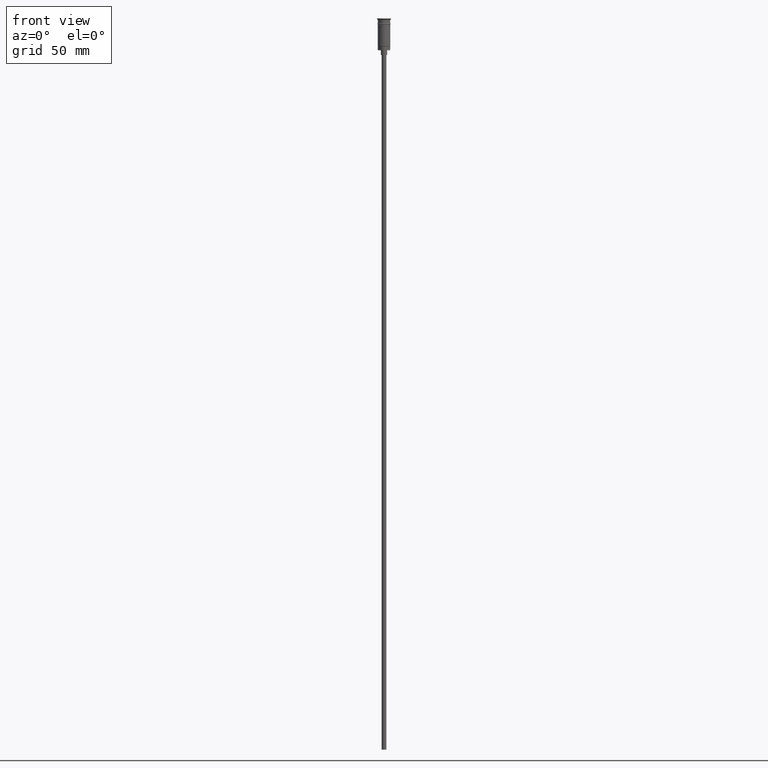
[diagram: clean part render]
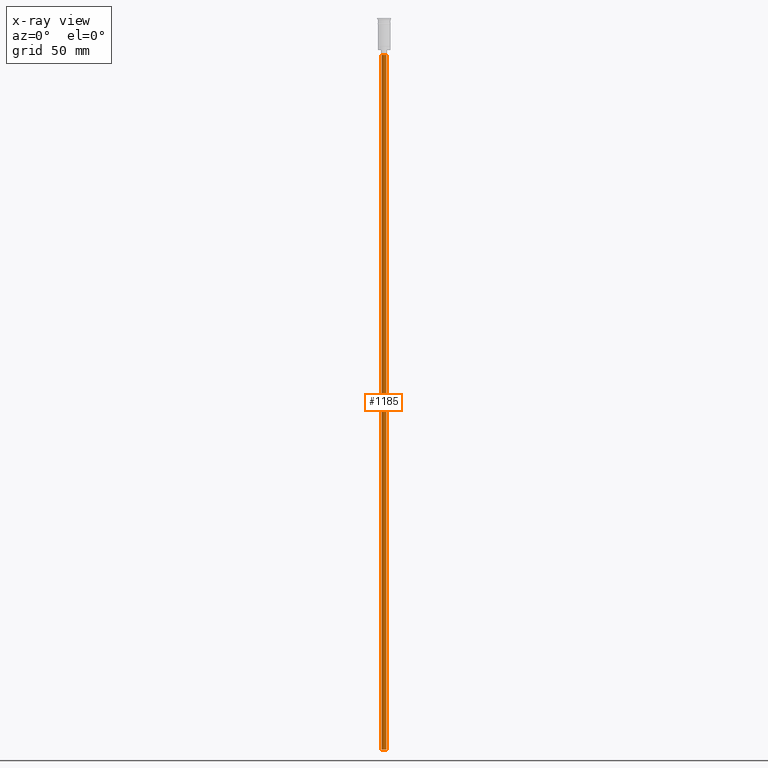
[diagram: x-ray — body ghosted, one internal face saturated and labeled with its STEP entity id]
A machine part, front view, then the same camera in x-ray: the body is ghosted and one INTERNAL B-rep face — a face not visible from any outside direction — is saturated and labeled: STEP entity #1185.
In plain terms, the highlighted cylindrical surface (edge-blend (fillet) strip) has radius 1.5 mm, axis along (-0, -0, 1).
Its self-contained STEP definition (entity closure, byte-faithful):
#57 = CARTESIAN_POINT ( 'NONE',  ( 1.500000000000000222, 0.000000000000000000, -470.5000000000000568 ) ) ;
#144 = AXIS2_PLACEMENT_3D ( 'NONE', #579, #1302, #1081 ) ;
#165 = DIRECTION ( 'NONE',  ( 0.000000000000000000, 0.000000000000000000, -1.000000000000000000 ) ) ;
#204 = VERTEX_POINT ( 'NONE', #298 ) ;
#236 = CARTESIAN_POINT ( 'NONE',  ( 1.500000000000000222, 0.000000000000000000, -470.5000000000000568 ) ) ;
#298 = CARTESIAN_POINT ( 'NONE',  ( 1.500000000000000222, 0.000000000000000000, -23.49999999999999645 ) ) ;
#359 = LINE ( 'NONE', #236, #1033 ) ;
#377 = AXIS2_PLACEMENT_3D ( 'NONE', #1128, #165, #645 ) ;
#393 = VERTEX_POINT ( 'NONE', #741 ) ;
#398 = AXIS2_PLACEMENT_3D ( 'NONE', #1300, #1183, #1432 ) ;
#473 = VERTEX_POINT ( 'NONE', #835 ) ;
#537 = ORIENTED_EDGE ( 'NONE', *, *, #898, .F. ) ;
#579 = CARTESIAN_POINT ( 'NONE',  ( 0.000000000000000000, 0.000000000000000000, -470.5000000000000568 ) ) ;
#593 = ORIENTED_EDGE ( 'NONE', *, *, #728, .T. ) ;
#620 = EDGE_LOOP ( 'NONE', ( #1275, #537, #1507, #593 ) ) ;
#641 = CYLINDRICAL_SURFACE ( 'NONE', #144, 1.500000000000000222 ) ;
#645 = DIRECTION ( 'NONE',  ( -1.000000000000000000, 0.000000000000000000, 0.000000000000000000 ) ) ;
#720 = DIRECTION ( 'NONE',  ( -0.000000000000000000, -0.000000000000000000, 1.000000000000000000 ) ) ;
#728 = EDGE_CURVE ( 'NONE', #204, #393, #882, .T. ) ;
#741 = CARTESIAN_POINT ( 'NONE',  ( -1.500000000000000222, 1.836970198721030181E-16, -23.49999999999999645 ) ) ;
#835 = CARTESIAN_POINT ( 'NONE',  ( -1.500000000000000222, 1.836970198721030181E-16, -470.5000000000000568 ) ) ;
#846 = LINE ( 'NONE', #1330, #861 ) ;
#861 = VECTOR ( 'NONE', #720, 1000.000000000000000 ) ;
#882 = CIRCLE ( 'NONE', #398, 1.500000000000000222 ) ;
#898 = EDGE_CURVE ( 'NONE', #1022, #473, #1168, .T. ) ;
#1022 = VERTEX_POINT ( 'NONE', #57 ) ;
#1033 = VECTOR ( 'NONE', #1220, 1000.000000000000000 ) ;
#1081 = DIRECTION ( 'NONE',  ( 1.000000000000000000, 0.000000000000000000, 0.000000000000000000 ) ) ;
#1103 = EDGE_CURVE ( 'NONE', #1022, #204, #359, .T. ) ;
#1128 = CARTESIAN_POINT ( 'NONE',  ( 0.000000000000000000, 0.000000000000000000, -470.5000000000000568 ) ) ;
#1168 = CIRCLE ( 'NONE', #377, 1.500000000000000222 ) ;
#1183 = DIRECTION ( 'NONE',  ( 0.000000000000000000, 0.000000000000000000, -1.000000000000000000 ) ) ;
#1185 = ADVANCED_FACE ( 'NONE', ( #1276 ), #641, .T. ) ;
#1220 = DIRECTION ( 'NONE',  ( -0.000000000000000000, -0.000000000000000000, 1.000000000000000000 ) ) ;
#1275 = ORIENTED_EDGE ( 'NONE', *, *, #1506, .F. ) ;
#1276 = FACE_OUTER_BOUND ( 'NONE', #620, .T. ) ;
#1300 = CARTESIAN_POINT ( 'NONE',  ( 0.000000000000000000, 0.000000000000000000, -23.49999999999999645 ) ) ;
#1302 = DIRECTION ( 'NONE',  ( -0.000000000000000000, -0.000000000000000000, 1.000000000000000000 ) ) ;
#1330 = CARTESIAN_POINT ( 'NONE',  ( -1.500000000000000222, 1.836970198721030181E-16, -470.5000000000000568 ) ) ;
#1432 = DIRECTION ( 'NONE',  ( -1.000000000000000000, 0.000000000000000000, 0.000000000000000000 ) ) ;
#1506 = EDGE_CURVE ( 'NONE', #473, #393, #846, .T. ) ;
#1507 = ORIENTED_EDGE ( 'NONE', *, *, #1103, .T. ) ;